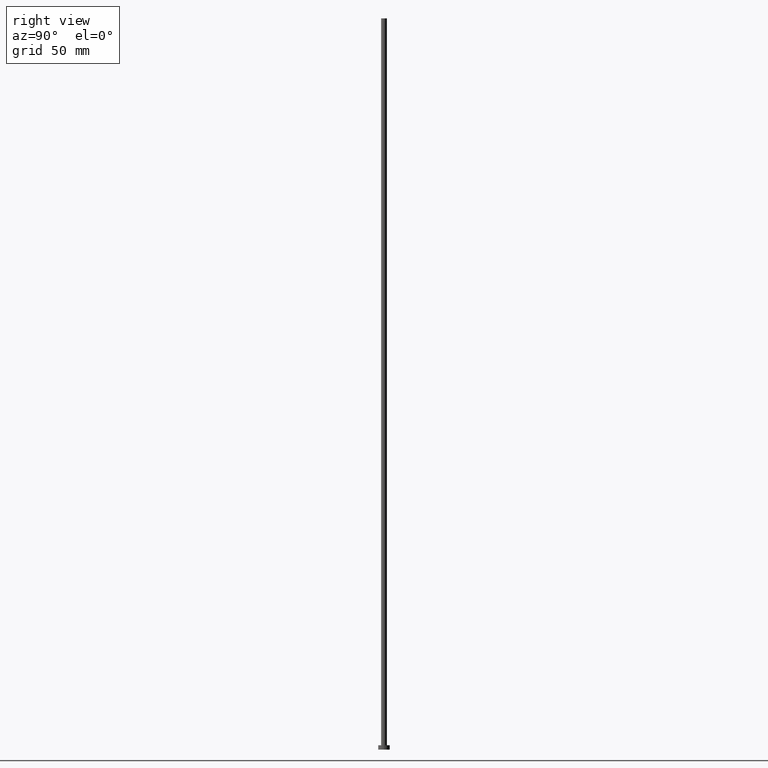
[diagram: clean part render]
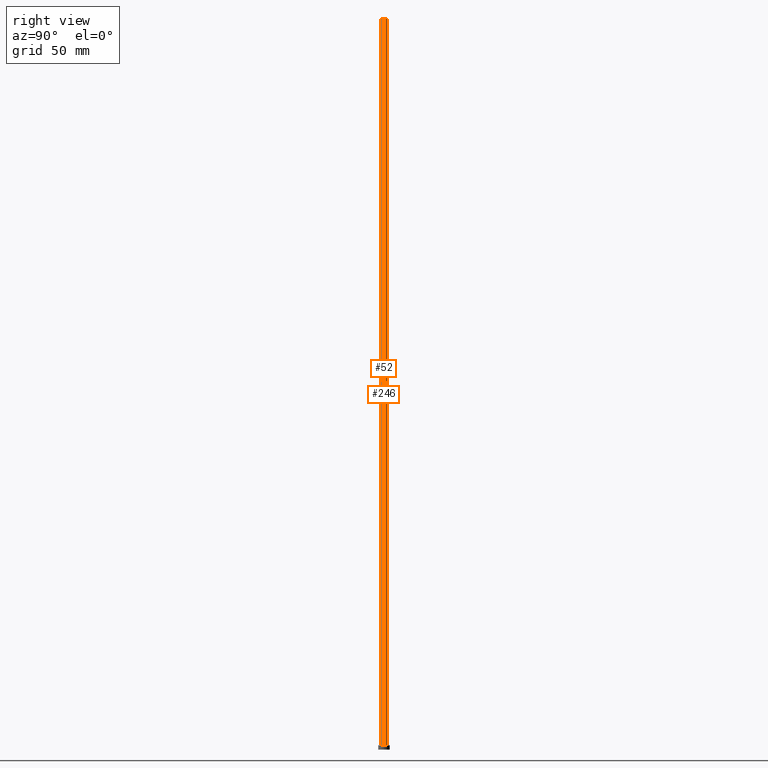
[diagram: same view with one multi-face feature highlighted, each face labeled with its STEP entity id]
A machine part, right view. The highlighted faces form ONE feature: a constant-radius fillet chain: 2 tangent blend faces with common blend radius 2 mm. The faces share edges in the B-rep.
Their STEP definitions:
[1] entity #246 (Cylinder):
#4 = CARTESIAN_POINT ( 'NONE',  ( 0.000000000000000000, 0.000000000000000000, 500.0000000000000000 ) ) ;
#18 = VECTOR ( 'NONE', #142, 1000.000000000000000 ) ;
#29 = CARTESIAN_POINT ( 'NONE',  ( 0.000000000000000000, 0.000000000000000000, 500.0000000000000000 ) ) ;
#31 = FACE_OUTER_BOUND ( 'NONE', #175, .T. ) ;
#40 = DIRECTION ( 'NONE',  ( 0.000000000000000000, 0.000000000000000000, 1.000000000000000000 ) ) ;
#53 = LINE ( 'NONE', #151, #233 ) ;
#54 = AXIS2_PLACEMENT_3D ( 'NONE', #4, #40, #109 ) ;
#59 = ORIENTED_EDGE ( 'NONE', *, *, #199, .F. ) ;
#63 = LINE ( 'NONE', #217, #18 ) ;
#71 = VERTEX_POINT ( 'NONE', #200 ) ;
#74 = EDGE_CURVE ( 'NONE', #80, #196, #63, .T. ) ;
#80 = VERTEX_POINT ( 'NONE', #108 ) ;
#90 = CARTESIAN_POINT ( 'NONE',  ( 0.000000000000000000, 0.000000000000000000, 3.000000000000000000 ) ) ;
#93 = DIRECTION ( 'NONE',  ( -0.000000000000000000, -0.000000000000000000, -1.000000000000000000 ) ) ;
#95 = CARTESIAN_POINT ( 'NONE',  ( 2.000000000000000000, 2.449293598294705921E-16, 3.000000000000000000 ) ) ;
#102 = VERTEX_POINT ( 'NONE', #159 ) ;
#107 = EDGE_CURVE ( 'NONE', #80, #102, #165, .T. ) ;
#108 = CARTESIAN_POINT ( 'NONE',  ( 2.000000000000000000, 2.449293598294705921E-16, 500.0000000000000000 ) ) ;
#109 = DIRECTION ( 'NONE',  ( 1.000000000000000000, 0.000000000000000000, 0.000000000000000000 ) ) ;
#119 = ORIENTED_EDGE ( 'NONE', *, *, #254, .T. ) ;
#125 = AXIS2_PLACEMENT_3D ( 'NONE', #90, #149, #204 ) ;
#142 = DIRECTION ( 'NONE',  ( -0.000000000000000000, -0.000000000000000000, -1.000000000000000000 ) ) ;
#147 = DIRECTION ( 'NONE',  ( -0.000000000000000000, -0.000000000000000000, -1.000000000000000000 ) ) ;
#149 = DIRECTION ( 'NONE',  ( 0.000000000000000000, 0.000000000000000000, 1.000000000000000000 ) ) ;
#151 = CARTESIAN_POINT ( 'NONE',  ( -2.000000000000000000, 0.000000000000000000, 500.0000000000000000 ) ) ;
#156 = ORIENTED_EDGE ( 'NONE', *, *, #107, .F. ) ;
#159 = CARTESIAN_POINT ( 'NONE',  ( -2.000000000000000000, 0.000000000000000000, 500.0000000000000000 ) ) ;
#165 = CIRCLE ( 'NONE', #54, 2.000000000000000000 ) ;
#169 = DIRECTION ( 'NONE',  ( -1.000000000000000000, 0.000000000000000000, 0.000000000000000000 ) ) ;
#175 = EDGE_LOOP ( 'NONE', ( #156, #229, #119, #59 ) ) ;
#190 = CIRCLE ( 'NONE', #125, 2.000000000000000000 ) ;
#196 = VERTEX_POINT ( 'NONE', #95 ) ;
#199 = EDGE_CURVE ( 'NONE', #102, #71, #53, .T. ) ;
#200 = CARTESIAN_POINT ( 'NONE',  ( -2.000000000000000000, 0.000000000000000000, 3.000000000000000000 ) ) ;
#204 = DIRECTION ( 'NONE',  ( 1.000000000000000000, 0.000000000000000000, 0.000000000000000000 ) ) ;
#217 = CARTESIAN_POINT ( 'NONE',  ( 2.000000000000000000, 2.449293598294705921E-16, 500.0000000000000000 ) ) ;
#229 = ORIENTED_EDGE ( 'NONE', *, *, #74, .T. ) ;
#233 = VECTOR ( 'NONE', #93, 1000.000000000000000 ) ;
#243 = CYLINDRICAL_SURFACE ( 'NONE', #252, 2.000000000000000000 ) ;
#246 = ADVANCED_FACE ( 'NONE', ( #31 ), #243, .T. ) ;
#252 = AXIS2_PLACEMENT_3D ( 'NONE', #29, #147, #169 ) ;
#254 = EDGE_CURVE ( 'NONE', #196, #71, #190, .T. ) ;
[2] entity #52 (Cylinder):
#1 = CARTESIAN_POINT ( 'NONE',  ( 0.000000000000000000, 0.000000000000000000, 500.0000000000000000 ) ) ;
#18 = VECTOR ( 'NONE', #142, 1000.000000000000000 ) ;
#22 = CYLINDRICAL_SURFACE ( 'NONE', #115, 2.000000000000000000 ) ;
#49 = DIRECTION ( 'NONE',  ( 1.000000000000000000, 0.000000000000000000, 0.000000000000000000 ) ) ;
#52 = ADVANCED_FACE ( 'NONE', ( #177 ), #22, .T. ) ;
#53 = LINE ( 'NONE', #151, #233 ) ;
#62 = ORIENTED_EDGE ( 'NONE', *, *, #208, .F. ) ;
#63 = LINE ( 'NONE', #217, #18 ) ;
#71 = VERTEX_POINT ( 'NONE', #200 ) ;
#74 = EDGE_CURVE ( 'NONE', #80, #196, #63, .T. ) ;
#78 = ORIENTED_EDGE ( 'NONE', *, *, #74, .F. ) ;
#80 = VERTEX_POINT ( 'NONE', #108 ) ;
#91 = AXIS2_PLACEMENT_3D ( 'NONE', #189, #240, #209 ) ;
#93 = DIRECTION ( 'NONE',  ( -0.000000000000000000, -0.000000000000000000, -1.000000000000000000 ) ) ;
#95 = CARTESIAN_POINT ( 'NONE',  ( 2.000000000000000000, 2.449293598294705921E-16, 3.000000000000000000 ) ) ;
#100 = CIRCLE ( 'NONE', #91, 2.000000000000000000 ) ;
#102 = VERTEX_POINT ( 'NONE', #159 ) ;
#108 = CARTESIAN_POINT ( 'NONE',  ( 2.000000000000000000, 2.449293598294705921E-16, 500.0000000000000000 ) ) ;
#114 = CARTESIAN_POINT ( 'NONE',  ( 0.000000000000000000, 0.000000000000000000, 500.0000000000000000 ) ) ;
#115 = AXIS2_PLACEMENT_3D ( 'NONE', #1, #183, #237 ) ;
#129 = EDGE_CURVE ( 'NONE', #71, #196, #100, .T. ) ;
#132 = DIRECTION ( 'NONE',  ( 0.000000000000000000, 0.000000000000000000, 1.000000000000000000 ) ) ;
#142 = DIRECTION ( 'NONE',  ( -0.000000000000000000, -0.000000000000000000, -1.000000000000000000 ) ) ;
#151 = CARTESIAN_POINT ( 'NONE',  ( -2.000000000000000000, 0.000000000000000000, 500.0000000000000000 ) ) ;
#159 = CARTESIAN_POINT ( 'NONE',  ( -2.000000000000000000, 0.000000000000000000, 500.0000000000000000 ) ) ;
#177 = FACE_OUTER_BOUND ( 'NONE', #250, .T. ) ;
#183 = DIRECTION ( 'NONE',  ( -0.000000000000000000, -0.000000000000000000, -1.000000000000000000 ) ) ;
#185 = CIRCLE ( 'NONE', #227, 2.000000000000000000 ) ;
#189 = CARTESIAN_POINT ( 'NONE',  ( 0.000000000000000000, 0.000000000000000000, 3.000000000000000000 ) ) ;
#196 = VERTEX_POINT ( 'NONE', #95 ) ;
#199 = EDGE_CURVE ( 'NONE', #102, #71, #53, .T. ) ;
#200 = CARTESIAN_POINT ( 'NONE',  ( -2.000000000000000000, 0.000000000000000000, 3.000000000000000000 ) ) ;
#208 = EDGE_CURVE ( 'NONE', #102, #80, #185, .T. ) ;
#209 = DIRECTION ( 'NONE',  ( 1.000000000000000000, 0.000000000000000000, 0.000000000000000000 ) ) ;
#217 = CARTESIAN_POINT ( 'NONE',  ( 2.000000000000000000, 2.449293598294705921E-16, 500.0000000000000000 ) ) ;
#227 = AXIS2_PLACEMENT_3D ( 'NONE', #114, #132, #49 ) ;
#230 = ORIENTED_EDGE ( 'NONE', *, *, #199, .T. ) ;
#233 = VECTOR ( 'NONE', #93, 1000.000000000000000 ) ;
#237 = DIRECTION ( 'NONE',  ( -1.000000000000000000, 0.000000000000000000, 0.000000000000000000 ) ) ;
#240 = DIRECTION ( 'NONE',  ( 0.000000000000000000, 0.000000000000000000, 1.000000000000000000 ) ) ;
#248 = ORIENTED_EDGE ( 'NONE', *, *, #129, .T. ) ;
#250 = EDGE_LOOP ( 'NONE', ( #78, #62, #230, #248 ) ) ;